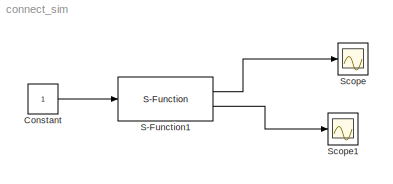
MODEL connect_sim
KIND model
BLOCK [Constant] Constant
  SID = 4
BLOCK [S-Function] S-Function1
  EnableBusSupport = off
  FunctionName = AnsoftSFunction
  OpenFcn = AnsoftLinkDialog();
  Ports = [1, 2]
  SID = 3
  UserData = DataTag0
  UserDataPersistent = on
BLOCK [Scope] Scope
  DataFormat = StructureWithTime
  Floating = off
  NumInputPorts = 1
  Ports = [1]
  SID = 5
  SampleTime = 0
  ShowLegends = off
BLOCK [Scope] Scope1
  DataFormat = StructureWithTime
  Floating = off
  NumInputPorts = 1
  Ports = [1]
  SID = 6
  SampleTime = 0
  SaveName = ScopeData1
  ShowLegends = off
LINE Constant:1 -> S-Function1:1
LINE S-Function1:1 -> Scope:1
LINE S-Function1:2 -> Scope1:1
